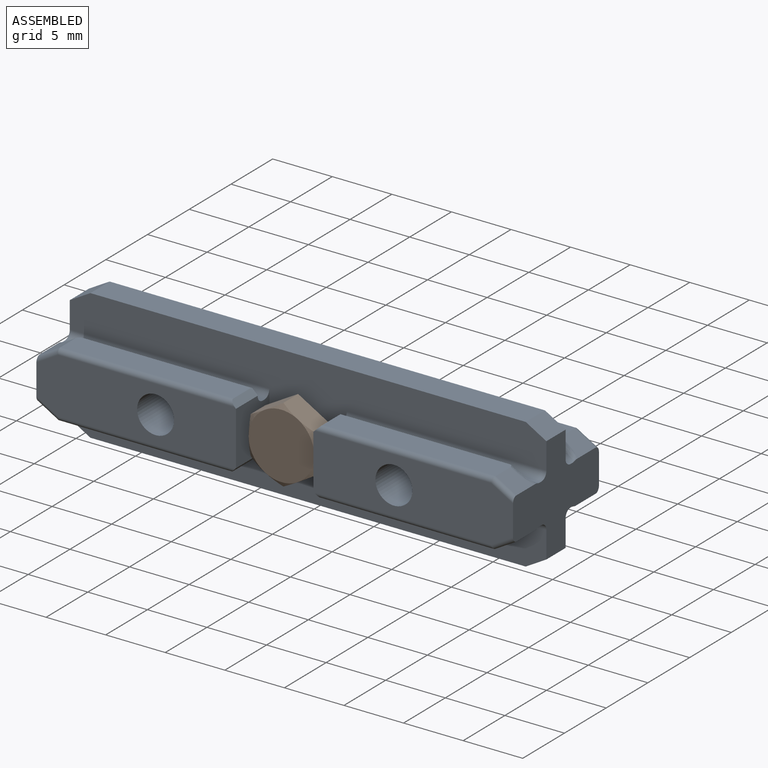
[diagram: assembled view]
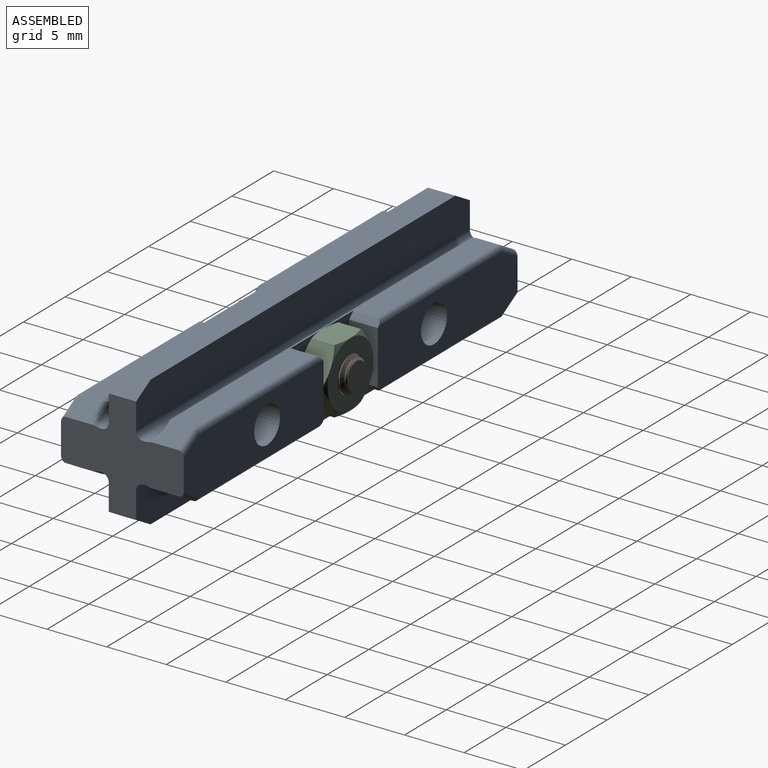
[diagram: assembled view, second angle]
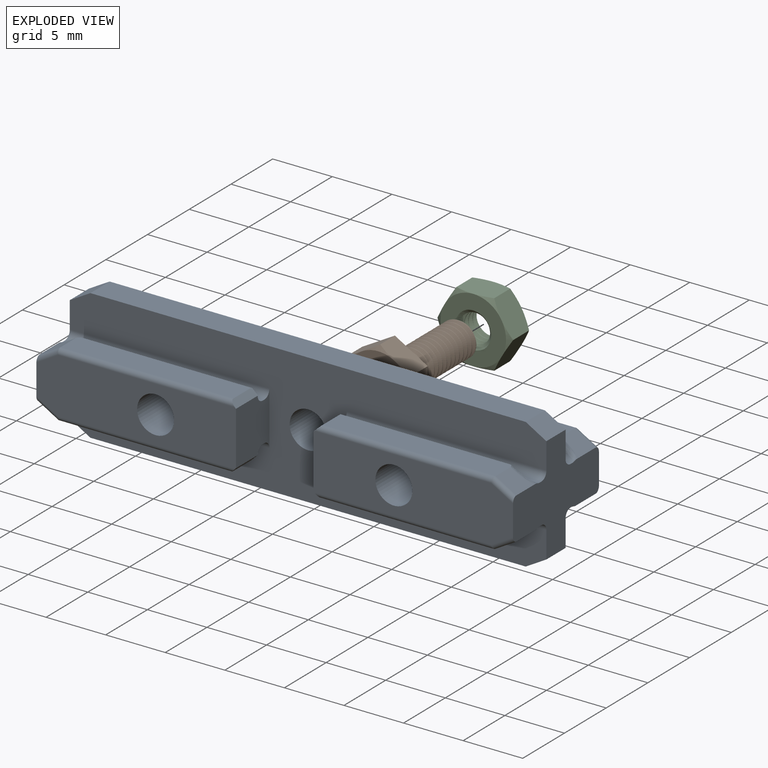
[diagram: exploded view]
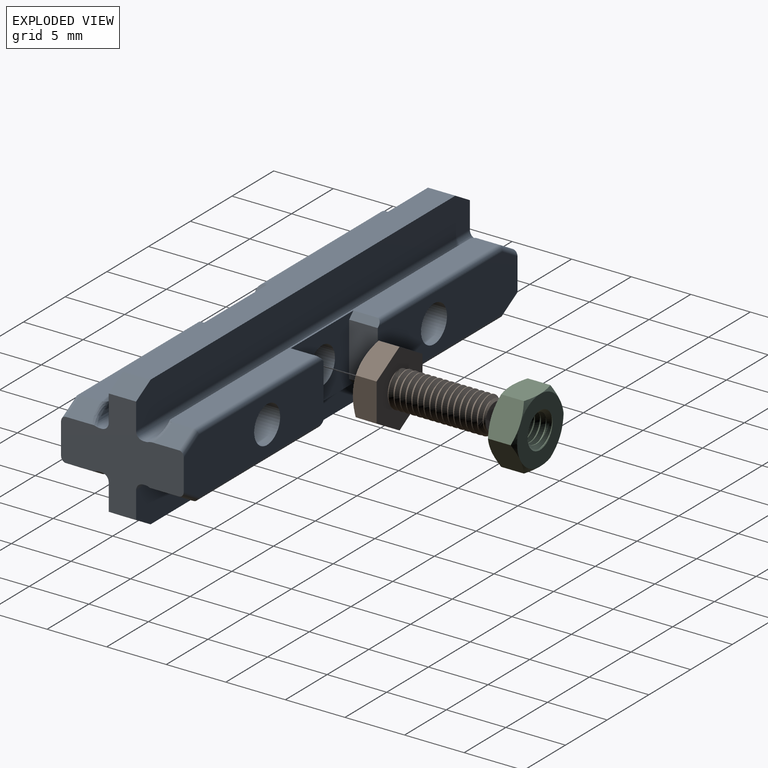
[diagram: exploded view, second angle]
ASSEMBLY  parts=3 mates=2
PART A: 98 faces, bbox 10.5x40.6x11.1 mm
  f0: cylinder r=1.55mm len=10.3mm, axis (1,0,0), area 100.3mm2, adj f24,f41
  f1: cylinder r=1.55mm len=3.9mm, axis (1,0,0), area 38mm2, adj f51,f62
  f2: cylinder r=1.55mm len=10.3mm, axis (1,0,0), area 100.3mm2, adj f4,f9
  f3: cylinder r=0.4mm len=14.92mm, axis (0,1,0), area 9.2mm2, adj f4,f39,f81,f90
  f4: plane 16.75x4.7mm, normal (1,0,0), area 69.2mm2, adj f2,f3,f5,f56,f60,f79,f81,f90
  f5: cylinder r=0.4mm len=14.92mm, axis (0,1,0), area 9.2mm2, adj f4,f43,f79,f97
  f6: cylinder r=0.1mm len=14.41mm, axis (0,1,0), area 2.2mm2, adj f7,f20,f77,f88
  f7: plane 14.61x2.19mm, normal (0,0,1), area 30.5mm2, adj f6,f8,f69,f77,f88
  f8: cylinder r=0.4mm len=14.92mm, axis (0,1,0), area 9.2mm2, adj f7,f9,f77,f92
  f9: plane 16.75x4.7mm, normal (-1,0,0), area 69.2mm2, adj f2,f8,f10,f56,f58,f75,f77,f91
  f10: cylinder r=0.4mm len=14.92mm, axis (0,1,0), area 9.2mm2, adj f9,f11,f75,f91
  f11: plane 14.61x2.19mm, normal (0,0,-1), area 30.5mm2, adj f10,f12,f70,f75,f89
  f12: cylinder r=0.1mm len=14.41mm, axis (0,1,0), area 2.2mm2, adj f11,f13,f75,f89
  f13: plane 15.19x0.5mm, normal (1,0,0), area 5.9mm2, adj f12,f14,f75,f89
  f14: cylinder r=0.6mm len=16.75mm, axis (0,1,0), area 15.2mm2, adj f13,f15,f56,f58,f89
  f15: plane 16.75x0.2mm, normal (0,0,-1), area 3.3mm2, adj f14,f16,f56,f58
  f16: cylinder r=0.6mm len=16.75mm, axis (0,1,0), area 15.8mm2, adj f15,f51,f56,f58
  f17: cylinder r=0.6mm len=16.75mm, axis (0,1,0), area 15.8mm2, adj f18,f51,f56,f58
  f18: plane 16.75x0.2mm, normal (0,0,1), area 3.3mm2, adj f17,f19,f56,f58
  f19: cylinder r=0.6mm len=16.75mm, axis (0,1,0), area 15.2mm2, adj f18,f20,f56,f58,f88
  f20: plane 15.19x0.5mm, normal (1,0,0), area 5.9mm2, adj f6,f19,f77,f88
  f21: cylinder r=0.1mm len=14.41mm, axis (0,1,0), area 2.2mm2, adj f22,f55,f78,f85
  f22: plane 14.61x2.19mm, normal (0,0,1), area 30.5mm2, adj f21,f23,f63,f78,f85
  f23: cylinder r=0.4mm len=14.92mm, axis (0,1,0), area 9.2mm2, adj f22,f24,f78,f94
  f24: plane 16.75x4.7mm, normal (-1,0,0), area 69.2mm2, adj f0,f23,f25,f57,f59,f76,f78,f93
  f25: cylinder r=0.4mm len=14.92mm, axis (0,1,0), area 9.2mm2, adj f24,f26,f76,f93
  f26: plane 14.61x2.19mm, normal (0,0,-1), area 30.5mm2, adj f25,f27,f64,f76,f84
  f27: cylinder r=0.1mm len=14.41mm, axis (0,1,0), area 2.2mm2, adj f26,f28,f76,f84
  f28: plane 15.19x0.5mm, normal (1,0,0), area 5.9mm2, adj f27,f29,f76,f84
  f29: cylinder r=0.6mm len=16.75mm, axis (0,1,0), area 15.2mm2, adj f28,f30,f57,f59,f84
  f30: plane 16.75x0.2mm, normal (0,0,-1), area 3.3mm2, adj f29,f31,f57,f59
  f31: cylinder r=0.6mm len=16.75mm, axis (0,1,0), area 15.8mm2, adj f30,f51,f57,f59
  f32: plane 36.54x2.3mm, normal (0,0,-1), area 84mm2, adj f33,f51,f67,f72
  f33: plane 40x3.24mm, normal (1,0,0), area 127.7mm2, adj f32,f34,f56,f57,f67,f72
  f34: cylinder r=0.6mm len=40mm, axis (0,1,0), area 37.7mm2, adj f33,f35,f56,f57
  f35: plane 40x0.2mm, normal (0,0,-1), area 8mm2, adj f34,f36,f56,f57
  f36: cylinder r=0.6mm len=40mm, axis (0,1,0), area 36.9mm2, adj f35,f37,f56,f57,f74,f83
  f37: plane 37.57x0.5mm, normal (-1,0,0), area 14.8mm2, adj f36,f38,f74,f83
  f38: cylinder r=0.1mm len=36.5mm, axis (0,1,0), area 5.7mm2, adj f37,f39,f74,f83
  f39: plane 36.62x2.19mm, normal (0,0,-1), area 61.7mm2, adj f3,f38,f40,f62,f68,f74,f81,f82
  f40: cylinder r=0.4mm len=14.92mm, axis (0,1,0), area 9.2mm2, adj f39,f41,f82,f95
  f41: plane 16.75x4.7mm, normal (1,0,0), area 69.2mm2, adj f0,f40,f42,f57,f61,f80,f82,f95
  f42: cylinder r=0.4mm len=14.92mm, axis (0,1,0), area 9.2mm2, adj f41,f43,f80,f96
  f43: plane 36.62x2.19mm, normal (0,0,1), area 61.7mm2, adj f5,f42,f44,f62,f65,f73,f79,f80
  f44: cylinder r=0.1mm len=36.12mm, axis (0,1,0), area 5.7mm2, adj f43,f45,f86,f87
  f45: plane 36.77x0.5mm, normal (-1,0,0), area 14.5mm2, adj f44,f46,f86,f87
  f46: cylinder r=0.6mm len=40mm, axis (0,1,0), area 36.6mm2, adj f45,f47,f56,f57,f86,f87
  f47: plane 40x0.2mm, normal (0,0,1), area 8mm2, adj f46,f48,f56,f57
  f48: cylinder r=0.6mm len=40mm, axis (0,1,0), area 37.7mm2, adj f47,f49,f56,f57
  f49: plane 40x3.24mm, normal (1,0,0), area 127.7mm2, adj f48,f50,f56,f57,f66,f71
  f50: plane 36.54x2.3mm, normal (0,0,1), area 84mm2, adj f49,f51,f66,f71
  f51: plane 40x10.97mm, normal (-1,0,0), area 277.1mm2, adj f1,f16,f17,f31,f32,f50,f52,f56
  f52: cylinder r=0.6mm len=16.75mm, axis (0,1,0), area 15.8mm2, adj f51,f53,f57,f59
  f53: plane 16.75x0.2mm, normal (0,0,1), area 3.3mm2, adj f52,f54,f57,f59
  f54: cylinder r=0.6mm len=16.75mm, axis (0,1,0), area 15.2mm2, adj f53,f55,f57,f59,f85
  f55: plane 15.19x0.5mm, normal (1,0,0), area 5.9mm2, adj f21,f54,f78,f85
  f56: plane 10.44x9.11mm, normal (0,-1,0), area 48.4mm2, adj f4,f9,f14,f15,f16,f17,f18,f19
  f57: plane 10.44x9.11mm, normal (0,1,0), area 48.4mm2, adj f24,f29,f30,f31,f33,f34,f35,f36
  f58: plane 4.5x4mm, normal (0,1,0), area 16.6mm2, adj f9,f14,f15,f16,f17,f18,f19,f51
  f59: plane 4.5x4mm, normal (0,-1,0), area 16.6mm2, adj f24,f29,f30,f31,f51,f52,f53,f54
  f60: plane 4.5x2.4mm, normal (0,1,0), area 10.8mm2, adj f4,f62,f79,f81
  f61: plane 4.5x2.4mm, normal (0,-1,0), area 10.8mm2, adj f41,f62,f80,f82
  f62: plane 7.5x5.5mm, normal (1,0,0), area 28.7mm2, adj f1,f39,f43,f60,f61,f79,f80,f81
  f63: plane 2.29x1.76mm, normal (0,0.5,0.87), area 3.8mm2, adj f22,f57,f85,f94
  f64: plane 2.29x1.76mm, normal (0,0.5,-0.87), area 3.8mm2, adj f26,f57,f84,f93
  f65: plane 2.29x1.76mm, normal (0,0.5,0.87), area 3.8mm2, adj f43,f57,f86,f96
  f66: plane 2.3x1.73mm, normal (0,0.5,0.87), area 4.6mm2, adj f49,f50,f51,f57
  f67: plane 2.3x1.73mm, normal (0,0.5,-0.87), area 4.6mm2, adj f32,f33,f51,f57
  f68: plane 2.29x1.76mm, normal (0,0.5,-0.87), area 3.8mm2, adj f39,f57,f83,f95
  f69: plane 2.29x1.76mm, normal (0,-0.5,0.87), area 3.8mm2, adj f7,f56,f88,f92
  f70: plane 2.29x1.76mm, normal (0,-0.5,-0.87), area 3.8mm2, adj f11,f56,f89,f91
  f71: plane 2.3x1.73mm, normal (0,-0.5,0.87), area 4.6mm2, adj f49,f50,f51,f56
  f72: plane 2.3x1.73mm, normal (0,-0.5,-0.87), area 4.6mm2, adj f32,f33,f51,f56
  f73: plane 2.29x1.76mm, normal (0,-0.5,0.87), area 3.8mm2, adj f43,f56,f87,f97
  f74: plane 2.59x1.85mm, normal (0,-0.5,-0.87), area 4.5mm2, adj f36,f37,f38,f39,f56,f90
  f75: plane 2.77x0.67mm, normal (0,0.71,-0.71), area 1.8mm2, adj f9,f10,f11,f12,f13,f58
  f76: plane 2.77x0.67mm, normal (0,-0.71,-0.71), area 1.8mm2, adj f24,f25,f26,f27,f28,f59
  f77: plane 2.77x0.67mm, normal (0,0.71,0.71), area 1.8mm2, adj f6,f7,f8,f9,f20,f58
  f78: plane 2.77x0.67mm, normal (0,-0.71,0.71), area 1.8mm2, adj f21,f22,f23,f24,f55,f59
  f79: plane 2.57x0.67mm, normal (0,0.71,0.71), area 1.6mm2, adj f4,f5,f43,f60,f62
  f80: plane 2.57x0.67mm, normal (0,-0.71,0.71), area 1.6mm2, adj f41,f42,f43,f61,f62
  f81: plane 2.57x0.67mm, normal (0,0.71,-0.71), area 1.6mm2, adj f3,f4,f39,f60,f62
  f82: plane 2.57x0.67mm, normal (0,-0.71,-0.71), area 1.6mm2, adj f39,f40,f41,f61,f62
  f83: bspline ~2.35x1.24mm, area 1.1mm2, adj f36,f37,f38,f39,f57,f68
  f84: bspline ~2.35x1.24mm, area 1.1mm2, adj f26,f27,f28,f29,f57,f64
  f85: bspline ~2.35x1.24mm, area 1.1mm2, adj f21,f22,f54,f55,f57,f63
  f86: bspline ~2.35x1.24mm, area 1.1mm2, adj f43,f44,f45,f46,f57,f65
  f87: bspline ~2.35x1.24mm, area 1.1mm2, adj f43,f44,f45,f46,f56,f73
  f88: bspline ~2.35x1.24mm, area 1.1mm2, adj f6,f7,f19,f20,f56,f69
  f89: bspline ~2.35x1.24mm, area 1.1mm2, adj f11,f12,f13,f14,f56,f70
  f90: cylinder r=0.4mm len=2.13mm, axis (0,-0.87,0.5), area 1.3mm2, adj f3,f4,f56,f74
  f91: cylinder r=0.4mm len=2.13mm, axis (0,0.87,-0.5), area 1.3mm2, adj f9,f10,f56,f70
  f92: cylinder r=0.4mm len=2.13mm, axis (0,-0.87,-0.5), area 1.3mm2, adj f8,f9,f56,f69
  f93: cylinder r=0.4mm len=2.13mm, axis (0,-0.87,-0.5), area 1.3mm2, adj f24,f25,f57,f64
  f94: cylinder r=0.4mm len=2.13mm, axis (0,0.87,-0.5), area 1.3mm2, adj f23,f24,f57,f63
  f95: cylinder r=0.4mm len=2.13mm, axis (0,0.87,0.5), area 1.3mm2, adj f40,f41,f57,f68
  f96: cylinder r=0.4mm len=2.13mm, axis (0,-0.87,0.5), area 1.3mm2, adj f41,f42,f57,f65
  f97: cylinder r=0.4mm len=2.13mm, axis (0,0.87,0.5), area 1.3mm2, adj f4,f5,f56,f73
PART B: 20 faces, bbox 10.4x6.6x6.6 mm
  f0: cone r=1.12mm half-angle=45deg, axis (-1,0,0), area 2.4mm2, adj f1,f8,f9,f10,f11
  f1: cylinder r=1.5mm len=7.63mm, axis (1,0,0), area 9mm2, adj f0,f10,f11,f12
  f2: plane 3.44x2.26mm, normal (0,1,0), area 6.1mm2, adj f3,f7,f12,f15,f16
  f3: plane 3.01x2.26mm, normal (0,0.5,-0.87), area 6.1mm2, adj f2,f4,f12,f14,f15
  f4: plane 3.01x2.26mm, normal (0,-0.5,-0.87), area 6.1mm2, adj f3,f5,f12,f13,f14
  f5: plane 3.44x2.26mm, normal (0,-1,0), area 6.1mm2, adj f4,f6,f12,f13,f18
  f6: plane 3.01x2.26mm, normal (0,-0.5,0.87), area 6.1mm2, adj f5,f7,f12,f17,f18
  f7: plane 3.01x2.26mm, normal (0,0.5,0.87), area 6.1mm2, adj f2,f6,f12,f16,f17
  f8: plane 2.25x2.25mm, normal (1,0,0), area 4mm2, adj f0
  f9: cylinder r=1.18mm len=7.95mm, axis (1,0,0), area 10.8mm2, adj f0,f10,f11,f12
  f10: bspline ~8.27x3.46mm, area 49.1mm2, adj f0,f1,f9,f12
  f11: bspline ~8.44x3.46mm, area 49.1mm2, adj f0,f1,f9,f12
  f12: plane 6.55x5.7mm, normal (1,0,0), area 20.5mm2, adj f1,f2,f3,f4,f5,f6,f7,f9
  f13: cone r=2.75mm half-angle=60deg, axis (1,0,0), area 0.7mm2, adj f4,f5,f19
  f14: cone r=2.75mm half-angle=60deg, axis (1,0,0), area 0.7mm2, adj f3,f4,f19
  f15: cone r=2.75mm half-angle=60deg, axis (1,0,0), area 0.7mm2, adj f2,f3,f19
  f16: cone r=2.75mm half-angle=60deg, axis (1,0,0), area 0.7mm2, adj f2,f7,f19
  f17: cone r=2.75mm half-angle=60deg, axis (1,0,0), area 0.7mm2, adj f6,f7,f19
  f18: cone r=2.75mm half-angle=60deg, axis (1,0,0), area 0.7mm2, adj f5,f6,f19
  f19: plane 5.5x5.5mm, normal (-1,0,0), area 23.8mm2, adj f13,f14,f15,f16,f17,f18
PART C: 27 faces, bbox 6.6x3x6.6 mm
  f0: cylinder r=1.5mm len=3mm, axis (0,1,0), area 2.8mm2, adj f10,f11,f12,f13,f14
  f1: cylinder r=1.18mm len=2.35mm, axis (0,-1,0), area 1.6mm2, adj f2,f3,f13,f14
  f2: cone r=1.5mm half-angle=45deg, axis (0,1,0), area 2mm2, adj f1,f11,f13,f14
  f3: cone r=1.5mm half-angle=45deg, axis (0,-1,0), area 2mm2, adj f1,f10,f12,f13,f14
  f4: plane 3.01x2.66mm, normal (-0.5,0,0.87), area 7.1mm2, adj f5,f9,f18,f19,f22,f23
  f5: plane 3.44x2.66mm, normal (-1,0,0), area 7.1mm2, adj f4,f6,f17,f18,f23,f24
  f6: plane 3.01x2.66mm, normal (-0.5,0,-0.87), area 7.1mm2, adj f5,f7,f16,f17,f24,f25
  f7: plane 3.01x2.66mm, normal (0.5,0,-0.87), area 7.1mm2, adj f6,f8,f15,f16,f25,f26
  f8: plane 3.44x2.66mm, normal (1,0,0), area 7.1mm2, adj f7,f9,f15,f20,f21,f26
  f9: plane 3.01x2.66mm, normal (0.5,0,0.87), area 7.1mm2, adj f4,f8,f19,f20,f21,f22
  f10: plane 5.5x5.5mm, normal (0,-1,0), area 16.7mm2, adj f0,f3,f15,f16,f17,f18,f19,f20
  f11: plane 5.5x5.5mm, normal (0,1,0), area 16.7mm2, adj f0,f2,f21,f22,f23,f24,f25,f26
  f12: plane 0x0mm, normal (0.5,0,0.87), area 0mm2, adj f0,f3,f13
  f13: bspline ~3x3mm, area 13.2mm2, adj f0,f1,f2,f3,f12
  f14: bspline ~3x3mm, area 13.2mm2, adj f0,f1,f2,f3
  f15: cone r=2.75mm half-angle=60deg, axis (0,1,0), area 0.7mm2, adj f7,f8,f10
  f16: cone r=2.75mm half-angle=60deg, axis (0,1,0), area 0.7mm2, adj f6,f7,f10
  f17: cone r=2.75mm half-angle=60deg, axis (0,1,0), area 0.7mm2, adj f5,f6,f10
  f18: cone r=2.75mm half-angle=60deg, axis (0,1,0), area 0.7mm2, adj f4,f5,f10
  f19: cone r=2.75mm half-angle=60deg, axis (0,1,0), area 0.7mm2, adj f4,f9,f10
  f20: cone r=2.75mm half-angle=60deg, axis (0,1,0), area 0.7mm2, adj f8,f9,f10
  f21: cone r=2.75mm half-angle=60deg, axis (0,-1,0), area 0.7mm2, adj f8,f9,f11
  f22: cone r=2.75mm half-angle=60deg, axis (0,-1,0), area 0.7mm2, adj f4,f9,f11
  f23: cone r=2.75mm half-angle=60deg, axis (0,-1,0), area 0.7mm2, adj f4,f5,f11
  f24: cone r=2.75mm half-angle=60deg, axis (0,-1,0), area 0.7mm2, adj f5,f6,f11
  f25: cone r=2.75mm half-angle=60deg, axis (0,-1,0), area 0.7mm2, adj f6,f7,f11
  f26: cone r=2.75mm half-angle=60deg, axis (0,-1,0), area 0.7mm2, adj f7,f8,f11
PLACE A rot(axis=(0,0,1),90deg) t=(-30.19,-4.31,20.05)mm
PLACE B rot(axis=(0,0,1),90deg) t=(-30.19,-3.66,20.05)mm
PLACE C rot(axis=(0,-1,0),90deg) t=(-30.19,-0.36,20.05)mm
MATE fastened B.f0 <-> A.f1  axis (0,1,0) through (-30.19,-6.66,20.05)mm
MATE fastened C.f0 <-> A.f1  axis (0,-1,0) through (-30.19,-1.56,20.05)mm
